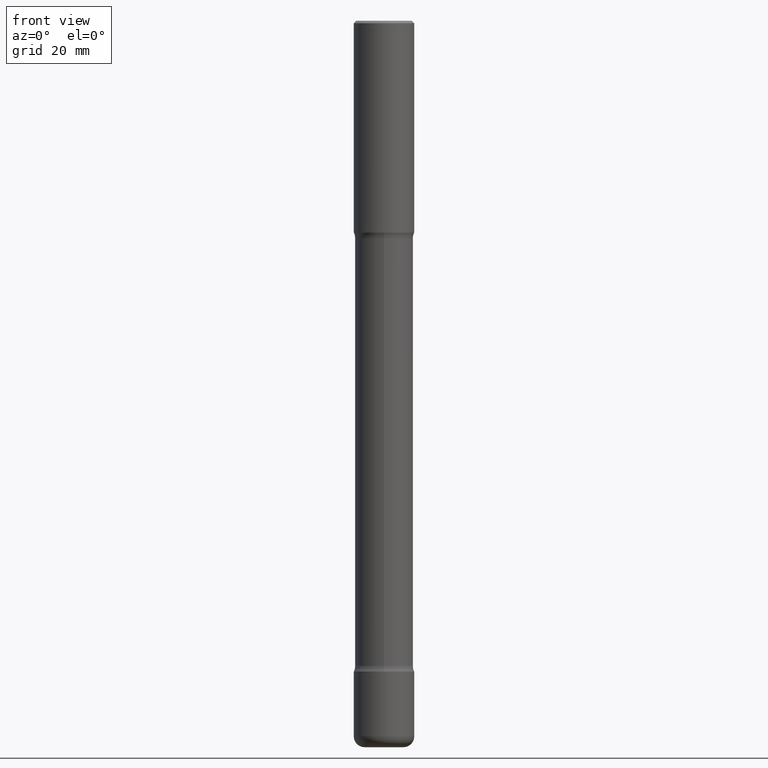
[diagram: clean part render]
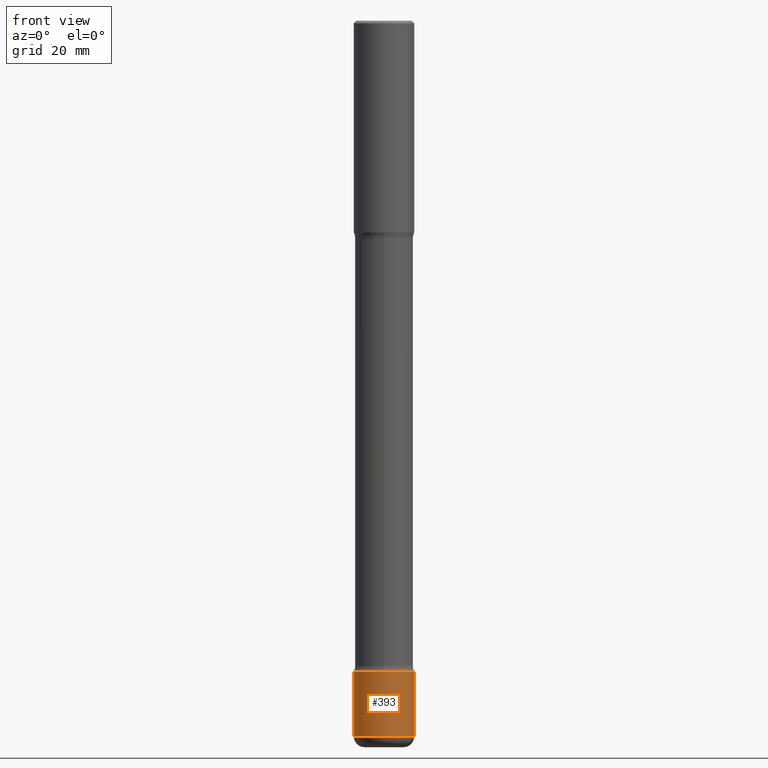
[diagram: same view with one face highlighted and labeled with its STEP entity id]
A machine part, front view. The second image highlights one B-rep face of the part: STEP entity #393.
In plain terms, the highlighted cylindrical surface (edge-blend (fillet) strip) has radius 6.35 mm, axis along (-0, 0, 1).
Its self-contained STEP definition (entity closure, byte-faithful):
#1 = CYLINDRICAL_SURFACE ( 'NONE', #385, 0.2500000000000003886 ) ;
#3 = DIRECTION ( 'NONE',  ( 1.000000000000000000, -6.982962677686262766E-15, 0.000000000000000000 ) ) ;
#8 = ORIENTED_EDGE ( 'NONE', *, *, #299, .F. ) ;
#31 = VERTEX_POINT ( 'NONE', #221 ) ;
#41 = EDGE_CURVE ( 'NONE', #158, #31, #453, .T. ) ;
#86 = VERTEX_POINT ( 'NONE', #528 ) ;
#90 = DIRECTION ( 'NONE',  ( 1.000000000000000000, -6.982962677686267499E-15, 4.876176775795935793E-29 ) ) ;
#100 = DIRECTION ( 'NONE',  ( -2.445468806185136597E-29, 3.491481338843145583E-15, 1.000000000000000000 ) ) ;
#133 = CARTESIAN_POINT ( 'NONE',  ( 1.314439483324511369E-28, -1.876671219628191278E-14, -5.375000000000001776 ) ) ;
#158 = VERTEX_POINT ( 'NONE', #392 ) ;
#170 = AXIS2_PLACEMENT_3D ( 'NONE', #133, #310, #485 ) ;
#218 = EDGE_CURVE ( 'NONE', #236, #31, #365, .T. ) ;
#221 = CARTESIAN_POINT ( 'NONE',  ( 0.2500000000000002776, -2.051245286570348262E-14, -5.375000000000001776 ) ) ;
#236 = VERTEX_POINT ( 'NONE', #281 ) ;
#262 = FACE_OUTER_BOUND ( 'NONE', #292, .T. ) ;
#277 = ORIENTED_EDGE ( 'NONE', *, *, #551, .T. ) ;
#281 = CARTESIAN_POINT ( 'NONE',  ( 0.2500000000000006661, -2.238039538198456243E-14, -5.910000000000001030 ) ) ;
#287 = CIRCLE ( 'NONE', #542, 0.2500000000000005551 ) ;
#292 = EDGE_LOOP ( 'NONE', ( #8, #277, #544, #553 ) ) ;
#299 = EDGE_CURVE ( 'NONE', #86, #158, #326, .T. ) ;
#310 = DIRECTION ( 'NONE',  ( -2.445468806185136597E-29, 3.491481338843145583E-15, 1.000000000000000000 ) ) ;
#326 = LINE ( 'NONE', #404, #504 ) ;
#350 = VECTOR ( 'NONE', #376, 39.37007874015748143 ) ;
#365 = LINE ( 'NONE', #412, #350 ) ;
#376 = DIRECTION ( 'NONE',  ( -2.445468806185136877E-29, 3.491481338843145188E-15, 1.000000000000000000 ) ) ;
#385 = AXIS2_PLACEMENT_3D ( 'NONE', #520, #476, #90 ) ;
#392 = CARTESIAN_POINT ( 'NONE',  ( -0.2500000000000002776, -1.792432661502220065E-14, -5.375000000000001776 ) ) ;
#393 = ADVANCED_FACE ( 'NONE', ( #262 ), #1, .T. ) ;
#404 = CARTESIAN_POINT ( 'NONE',  ( -0.2500000000000003886, 1.776356839400253226E-15, -1.229733772563728407E-29 ) ) ;
#412 = CARTESIAN_POINT ( 'NONE',  ( 0.2500000000000003886, -1.745740669421569636E-15, 1.219044193948985910E-29 ) ) ;
#453 = CIRCLE ( 'NONE', #170, 0.2500000000000002776 ) ;
#476 = DIRECTION ( 'NONE',  ( -2.445468806185136597E-29, 3.491481338843145583E-15, 1.000000000000000000 ) ) ;
#485 = DIRECTION ( 'NONE',  ( 1.000000000000000000, -6.982962677686270655E-15, 0.000000000000000000 ) ) ;
#493 = CARTESIAN_POINT ( 'NONE',  ( 1.445272064455416016E-28, -2.063465471256299260E-14, -5.910000000000001030 ) ) ;
#504 = VECTOR ( 'NONE', #507, 39.37007874015748143 ) ;
#507 = DIRECTION ( 'NONE',  ( -2.445468806185136877E-29, 3.491481338843145188E-15, 1.000000000000000000 ) ) ;
#520 = CARTESIAN_POINT ( 'NONE',  ( 0.000000000000000000, 0.000000000000000000, 0.000000000000000000 ) ) ;
#528 = CARTESIAN_POINT ( 'NONE',  ( -0.2500000000000006661, -1.885829787316274213E-14, -5.910000000000001030 ) ) ;
#542 = AXIS2_PLACEMENT_3D ( 'NONE', #493, #100, #3 ) ;
#544 = ORIENTED_EDGE ( 'NONE', *, *, #218, .T. ) ;
#551 = EDGE_CURVE ( 'NONE', #86, #236, #287, .T. ) ;
#553 = ORIENTED_EDGE ( 'NONE', *, *, #41, .F. ) ;